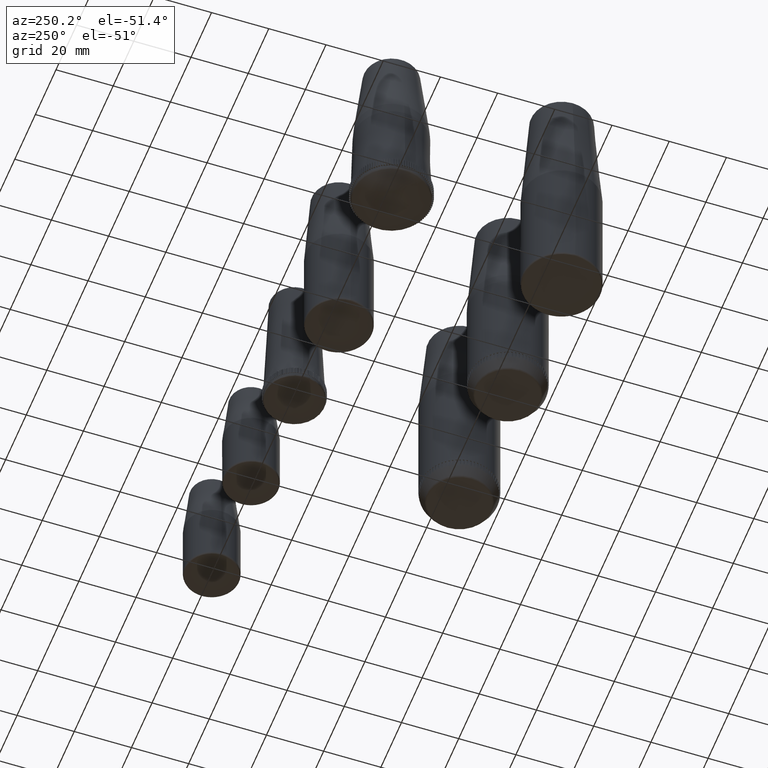
[diagram: clean part render]
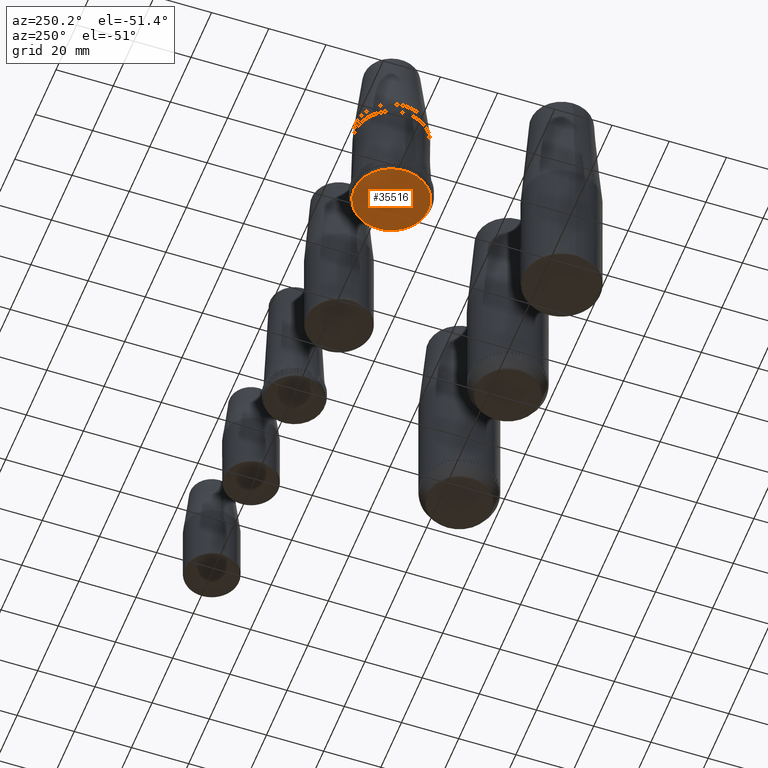
[diagram: same view with one face highlighted and labeled with its STEP entity id]
A machine part, auxiliary view. The second image highlights one B-rep face of the part: STEP entity #35516.
In plain terms, the highlighted spherical surface has radius 24.7812 mm.
Its self-contained STEP definition (entity closure, byte-faithful):
#494=SPHERICAL_SURFACE('',#39676,24.78125);
#9285=FACE_OUTER_BOUND('',#11545,.T.);
#11545=EDGE_LOOP('',(#32230));
#13908=CIRCLE('',#39673,13.0123071299204);
#17246=VERTEX_POINT('',#66099);
#22294=EDGE_CURVE('',#17246,#17246,#13908,.T.);
#32230=ORIENTED_EDGE('',*,*,#22294,.F.);
#35516=ADVANCED_FACE('',(#9285),#494,.T.);
#39673=AXIS2_PLACEMENT_3D('',#66100,#50154,#50155);
#39676=AXIS2_PLACEMENT_3D('',#66104,#50160,#50161);
#50154=DIRECTION('center_axis',(-1.,0.,0.));
#50155=DIRECTION('ref_axis',(0.,-1.,1.83697019872103E-16));
#50160=DIRECTION('center_axis',(0.,0.,1.));
#50161=DIRECTION('ref_axis',(1.,0.,0.));
#66099=CARTESIAN_POINT('',(62.8088001355289,13.0123071299204,-3.98387006904482E-15));
#66100=CARTESIAN_POINT('Origin',(62.8088001355289,-1.40054415721439E-16,
0.));
#66104=CARTESIAN_POINT('Origin',(41.71875,3.33066907387547E-15,0.));